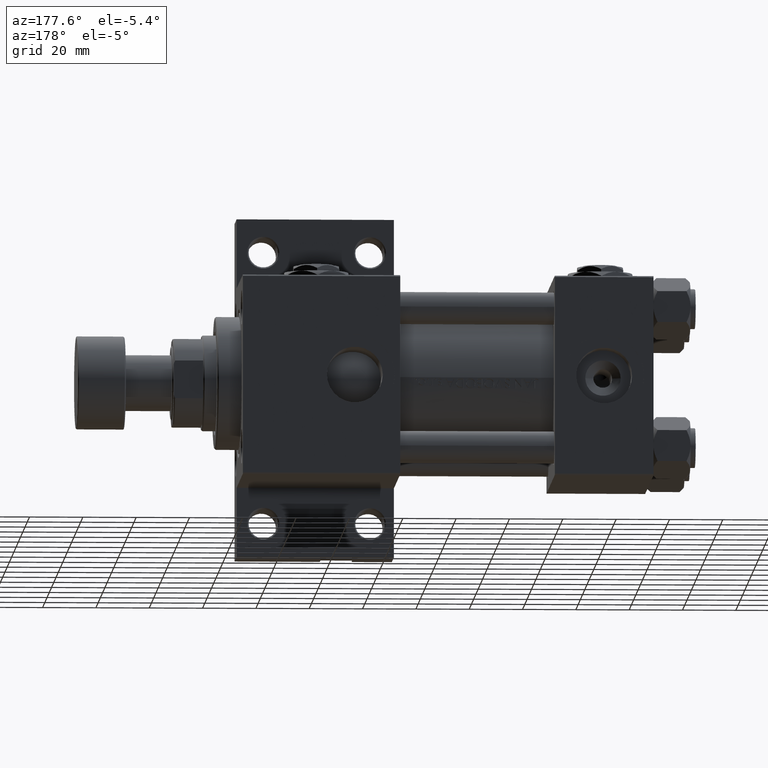
[diagram: clean part render]
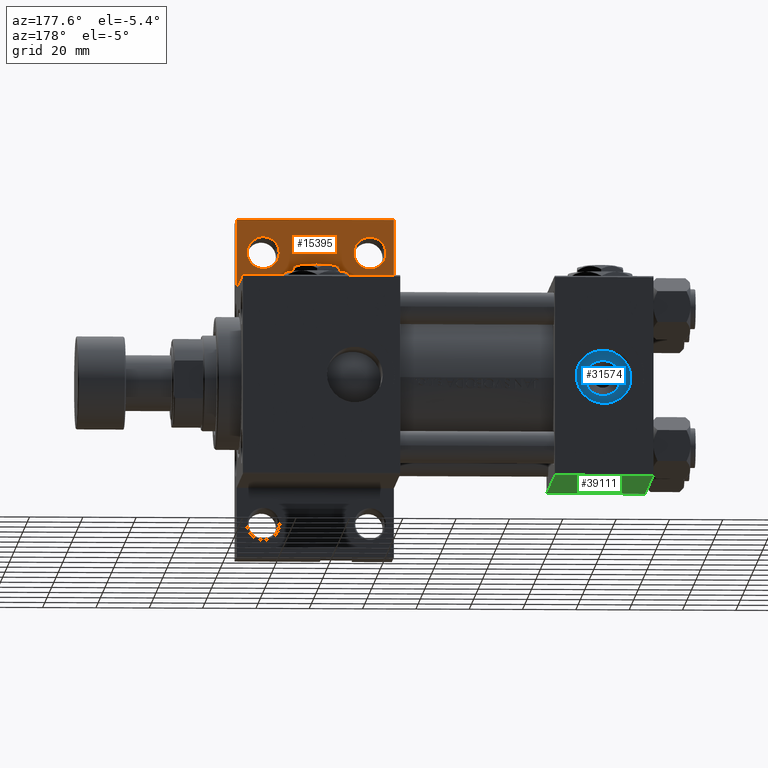
[diagram: same view with three faces highlighted in distinct colors, each labeled with its STEP entity id]
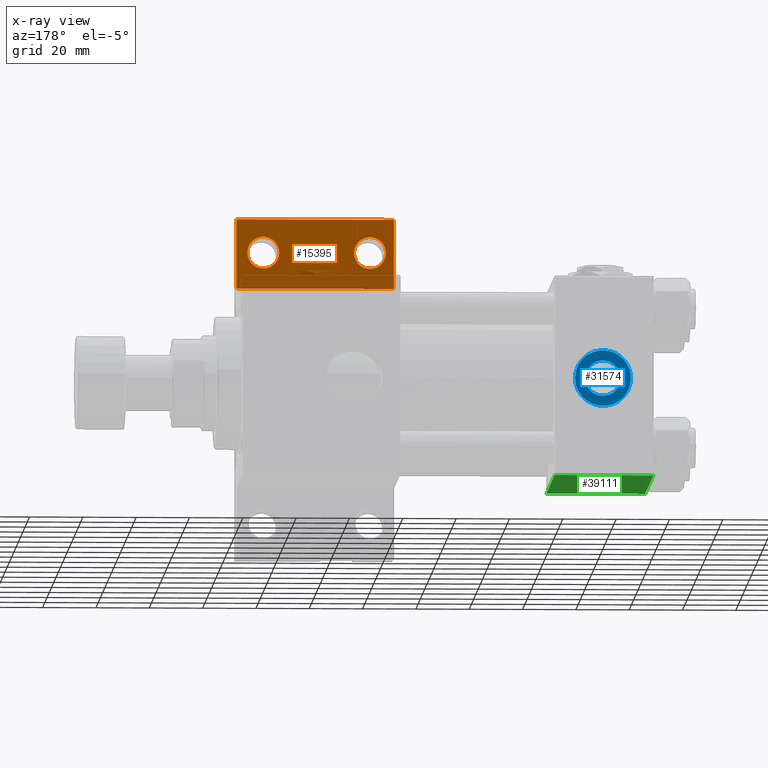
[diagram: x-ray of the same camera — body ghosted, the three highlighted faces saturated]
A machine part, auxiliary view with three faces highlighted in distinct colors.
The next image is the same camera in x-ray (body ghosted, the three faces saturated) — at least one of them is partly hidden behind the body in this view.
Their STEP definitions:

[orange] entity #15395 — the highlighted planar face has unit normal (0, -1, 0).
#679 = CARTESIAN_POINT ( 'NONE',  ( 149.9995000000000118, -51.00000000000000000, -18.50000000000000000 ) ) ;
#1261 = DIRECTION ( 'NONE',  ( 0.000000000000000000, 0.000000000000000000, -1.000000000000000000 ) ) ;
#1513 = FACE_BOUND ( 'NONE', #4546, .T. ) ;
#2384 = ORIENTED_EDGE ( 'NONE', *, *, #10330, .F. ) ;
#2415 = AXIS2_PLACEMENT_3D ( 'NONE', #22276, #49422, #37502 ) ;
#3821 = LINE ( 'NONE', #7634, #20458 ) ;
#4546 = EDGE_LOOP ( 'NONE', ( #36491, #10978 ) ) ;
#6577 = CARTESIAN_POINT ( 'NONE',  ( 143.9999999999999716, -51.00000000000000000, -18.50000000000000000 ) ) ;
#7163 = ORIENTED_EDGE ( 'NONE', *, *, #48563, .T. ) ;
#7634 = CARTESIAN_POINT ( 'NONE',  ( 94.99999999999998579, -63.50000000000000000, -18.50000000000000000 ) ) ;
#8508 = AXIS2_PLACEMENT_3D ( 'NONE', #45032, #14341, #42403 ) ;
#8994 = CARTESIAN_POINT ( 'NONE',  ( 98.00049999999988870, -50.99999999999999289, -18.50000000000000000 ) ) ;
#9212 = EDGE_LOOP ( 'NONE', ( #7163, #23660 ) ) ;
#9886 = DIRECTION ( 'NONE',  ( -1.000000000000000000, 0.000000000000000000, 0.000000000000000000 ) ) ;
#10330 = EDGE_CURVE ( 'NONE', #27964, #35702, #47221, .T. ) ;
#10713 = ORIENTED_EDGE ( 'NONE', *, *, #23074, .F. ) ;
#10835 = CARTESIAN_POINT ( 'NONE',  ( 154.0000000000000000, -37.50000000000000711, -18.50000000000000355 ) ) ;
#10978 = ORIENTED_EDGE ( 'NONE', *, *, #23013, .T. ) ;
#11975 = LINE ( 'NONE', #42912, #29031 ) ;
#12894 = EDGE_LOOP ( 'NONE', ( #18058, #2384, #13945, #10713 ) ) ;
#13945 = ORIENTED_EDGE ( 'NONE', *, *, #22118, .F. ) ;
#14341 = DIRECTION ( 'NONE',  ( 0.000000000000000000, 0.000000000000000000, -1.000000000000000000 ) ) ;
#14741 = VERTEX_POINT ( 'NONE', #39649 ) ;
#15395 = ADVANCED_FACE ( 'NONE', ( #16201, #1513, #24311 ), #36259, .F. ) ;
#16201 = FACE_BOUND ( 'NONE', #9212, .T. ) ;
#16591 = CIRCLE ( 'NONE', #8508, 5.999500000000046462 ) ;
#16665 = CARTESIAN_POINT ( 'NONE',  ( 95.00000000000000000, -37.50000000000000000, -18.50000000000000000 ) ) ;
#16707 = DIRECTION ( 'NONE',  ( -1.000000000000000000, 0.000000000000000000, -0.000000000000000000 ) ) ;
#18058 = ORIENTED_EDGE ( 'NONE', *, *, #39305, .F. ) ;
#18488 = VERTEX_POINT ( 'NONE', #48929 ) ;
#20458 = VECTOR ( 'NONE', #39038, 1000.000000000000000 ) ;
#22118 = EDGE_CURVE ( 'NONE', #14741, #27964, #3821, .T. ) ;
#22147 = DIRECTION ( 'NONE',  ( 0.000000000000000000, 0.000000000000000000, -1.000000000000000000 ) ) ;
#22276 = CARTESIAN_POINT ( 'NONE',  ( 103.9999999999999574, -50.99999999999999289, -18.50000000000000000 ) ) ;
#23013 = EDGE_CURVE ( 'NONE', #39057, #45873, #45598, .T. ) ;
#23074 = EDGE_CURVE ( 'NONE', #18488, #14741, #35819, .T. ) ;
#23660 = ORIENTED_EDGE ( 'NONE', *, *, #26839, .T. ) ;
#24311 = FACE_OUTER_BOUND ( 'NONE', #12894, .T. ) ;
#24869 = CARTESIAN_POINT ( 'NONE',  ( 109.9995000000000118, -50.99999999999999289, -18.50000000000000000 ) ) ;
#25514 = AXIS2_PLACEMENT_3D ( 'NONE', #6577, #32977, #9886 ) ;
#26108 = AXIS2_PLACEMENT_3D ( 'NONE', #40299, #1261, #16707 ) ;
#26839 = EDGE_CURVE ( 'NONE', #31161, #38603, #35215, .T. ) ;
#27026 = VECTOR ( 'NONE', #47474, 1000.000000000000000 ) ;
#27964 = VERTEX_POINT ( 'NONE', #16665 ) ;
#28201 = CARTESIAN_POINT ( 'NONE',  ( 95.00000000000000000, -37.50000000000000000, -18.50000000000000000 ) ) ;
#29031 = VECTOR ( 'NONE', #39605, 1000.000000000000000 ) ;
#30260 = VECTOR ( 'NONE', #46973, 1000.000000000000000 ) ;
#30754 = DIRECTION ( 'NONE',  ( -1.000000000000000000, 0.000000000000000000, 0.000000000000000000 ) ) ;
#31161 = VERTEX_POINT ( 'NONE', #37788 ) ;
#31510 = CARTESIAN_POINT ( 'NONE',  ( 94.99999999999998579, -63.50000000000000000, -18.50000000000000000 ) ) ;
#32977 = DIRECTION ( 'NONE',  ( 0.000000000000000000, 0.000000000000000000, -1.000000000000000000 ) ) ;
#33189 = CIRCLE ( 'NONE', #2415, 5.999500000000046462 ) ;
#34275 = AXIS2_PLACEMENT_3D ( 'NONE', #45971, #22147, #30754 ) ;
#35215 = CIRCLE ( 'NONE', #25514, 5.999500000000046462 ) ;
#35702 = VERTEX_POINT ( 'NONE', #10835 ) ;
#35819 = LINE ( 'NONE', #31510, #30260 ) ;
#36259 = PLANE ( 'NONE',  #26108 ) ;
#36491 = ORIENTED_EDGE ( 'NONE', *, *, #42391, .T. ) ;
#37502 = DIRECTION ( 'NONE',  ( -1.000000000000000000, 0.000000000000000000, 0.000000000000000000 ) ) ;
#37788 = CARTESIAN_POINT ( 'NONE',  ( 138.0004999999999029, -51.00000000000000000, -18.50000000000000000 ) ) ;
#38603 = VERTEX_POINT ( 'NONE', #679 ) ;
#39038 = DIRECTION ( 'NONE',  ( 5.337610695313252371E-16, 1.000000000000000000, 0.000000000000000000 ) ) ;
#39057 = VERTEX_POINT ( 'NONE', #8994 ) ;
#39305 = EDGE_CURVE ( 'NONE', #35702, #18488, #11975, .T. ) ;
#39605 = DIRECTION ( 'NONE',  ( -0.000000000000000000, -1.000000000000000000, -0.000000000000000000 ) ) ;
#39649 = CARTESIAN_POINT ( 'NONE',  ( 94.99999999999998579, -63.50000000000000000, -18.50000000000000000 ) ) ;
#40299 = CARTESIAN_POINT ( 'NONE',  ( 0.000000000000000000, 0.000000000000000000, -18.50000000000000000 ) ) ;
#42391 = EDGE_CURVE ( 'NONE', #45873, #39057, #33189, .T. ) ;
#42403 = DIRECTION ( 'NONE',  ( -1.000000000000000000, 0.000000000000000000, 0.000000000000000000 ) ) ;
#42912 = CARTESIAN_POINT ( 'NONE',  ( 153.9999999999999716, -63.50000000000002842, -18.50000000000000000 ) ) ;
#45032 = CARTESIAN_POINT ( 'NONE',  ( 143.9999999999999716, -51.00000000000000000, -18.50000000000000000 ) ) ;
#45598 = CIRCLE ( 'NONE', #34275, 5.999500000000046462 ) ;
#45873 = VERTEX_POINT ( 'NONE', #24869 ) ;
#45971 = CARTESIAN_POINT ( 'NONE',  ( 103.9999999999999574, -50.99999999999999289, -18.50000000000000000 ) ) ;
#46973 = DIRECTION ( 'NONE',  ( -1.000000000000000000, 4.704334850106596780E-16, -0.000000000000000000 ) ) ;
#47221 = LINE ( 'NONE', #28201, #27026 ) ;
#47474 = DIRECTION ( 'NONE',  ( 1.000000000000000000, -3.528251137579948571E-16, 0.000000000000000000 ) ) ;
#48563 = EDGE_CURVE ( 'NONE', #38603, #31161, #16591, .T. ) ;
#48929 = CARTESIAN_POINT ( 'NONE',  ( 153.9999999999999716, -63.50000000000002842, -18.50000000000000000 ) ) ;
#49422 = DIRECTION ( 'NONE',  ( 0.000000000000000000, 0.000000000000000000, -1.000000000000000000 ) ) ;

[blue] entity #31574 — the highlighted planar face has unit normal (0, 1, 0).
#2937 = EDGE_CURVE ( 'NONE', #14115, #22055, #23589, .T. ) ;
#3584 = CIRCLE ( 'NONE', #5169, 6.639999999999986358 ) ;
#5169 = AXIS2_PLACEMENT_3D ( 'NONE', #22729, #45814, #10830 ) ;
#5179 = CARTESIAN_POINT ( 'NONE',  ( 28.98000000000000043, -5.204170427930421283E-15, 26.69999999999999929 ) ) ;
#9604 = FACE_BOUND ( 'NONE', #49525, .T. ) ;
#10830 = DIRECTION ( 'NONE',  ( 1.000000000000000000, 0.000000000000000000, 0.000000000000000000 ) ) ;
#11670 = CARTESIAN_POINT ( 'NONE',  ( 8.019999999999999574, -3.920740582423995006E-15, 26.69999999999999929 ) ) ;
#11701 = ORIENTED_EDGE ( 'NONE', *, *, #45988, .T. ) ;
#12374 = FACE_OUTER_BOUND ( 'NONE', #32306, .T. ) ;
#12879 = DIRECTION ( 'NONE',  ( 1.000000000000000000, 0.000000000000000000, -0.000000000000000000 ) ) ;
#13404 = CARTESIAN_POINT ( 'NONE',  ( 18.50000000000000000, -5.204170427930421283E-15, 26.69999999999999929 ) ) ;
#14115 = VERTEX_POINT ( 'NONE', #5179 ) ;
#16947 = DIRECTION ( 'NONE',  ( 0.000000000000000000, 0.000000000000000000, 1.000000000000000000 ) ) ;
#16996 = VERTEX_POINT ( 'NONE', #34332 ) ;
#18502 = CARTESIAN_POINT ( 'NONE',  ( 18.50000000000000000, -5.204170427930421283E-15, 26.69999999999999929 ) ) ;
#19768 = CARTESIAN_POINT ( 'NONE',  ( 25.13999999999998636, -5.204170427930421283E-15, 26.69999999999999929 ) ) ;
#21237 = CARTESIAN_POINT ( 'NONE',  ( 18.50000000000000000, -5.204170427930421283E-15, 26.69999999999999929 ) ) ;
#21384 = AXIS2_PLACEMENT_3D ( 'NONE', #48656, #44095, #28377 ) ;
#22055 = VERTEX_POINT ( 'NONE', #11670 ) ;
#22556 = DIRECTION ( 'NONE',  ( -0.000000000000000000, -0.000000000000000000, -1.000000000000000000 ) ) ;
#22729 = CARTESIAN_POINT ( 'NONE',  ( 18.50000000000000000, -5.204170427930421283E-15, 26.69999999999999929 ) ) ;
#23589 = CIRCLE ( 'NONE', #48740, 10.48000000000000043 ) ;
#24237 = EDGE_CURVE ( 'NONE', #16996, #43947, #3584, .T. ) ;
#24278 = PLANE ( 'NONE',  #28896 ) ;
#26192 = AXIS2_PLACEMENT_3D ( 'NONE', #18502, #22556, #37294 ) ;
#28377 = DIRECTION ( 'NONE',  ( 1.000000000000000000, 0.000000000000000000, 0.000000000000000000 ) ) ;
#28896 = AXIS2_PLACEMENT_3D ( 'NONE', #21237, #31654, #12879 ) ;
#31574 = ADVANCED_FACE ( 'NONE', ( #9604, #12374 ), #24278, .T. ) ;
#31654 = DIRECTION ( 'NONE',  ( 0.000000000000000000, 0.000000000000000000, 1.000000000000000000 ) ) ;
#31720 = ORIENTED_EDGE ( 'NONE', *, *, #47198, .T. ) ;
#32306 = EDGE_LOOP ( 'NONE', ( #47905, #31720 ) ) ;
#32701 = DIRECTION ( 'NONE',  ( 1.000000000000000000, 0.000000000000000000, 0.000000000000000000 ) ) ;
#34332 = CARTESIAN_POINT ( 'NONE',  ( 11.86000000000001364, -4.391004953296580751E-15, 26.69999999999999929 ) ) ;
#37294 = DIRECTION ( 'NONE',  ( 1.000000000000000000, 0.000000000000000000, 0.000000000000000000 ) ) ;
#39983 = CIRCLE ( 'NONE', #26192, 6.639999999999986358 ) ;
#43238 = CIRCLE ( 'NONE', #21384, 10.48000000000000043 ) ;
#43947 = VERTEX_POINT ( 'NONE', #19768 ) ;
#44095 = DIRECTION ( 'NONE',  ( 0.000000000000000000, 0.000000000000000000, 1.000000000000000000 ) ) ;
#45814 = DIRECTION ( 'NONE',  ( -0.000000000000000000, -0.000000000000000000, -1.000000000000000000 ) ) ;
#45988 = EDGE_CURVE ( 'NONE', #43947, #16996, #39983, .T. ) ;
#46930 = ORIENTED_EDGE ( 'NONE', *, *, #24237, .T. ) ;
#47198 = EDGE_CURVE ( 'NONE', #22055, #14115, #43238, .T. ) ;
#47905 = ORIENTED_EDGE ( 'NONE', *, *, #2937, .T. ) ;
#48656 = CARTESIAN_POINT ( 'NONE',  ( 18.50000000000000000, -5.204170427930421283E-15, 26.69999999999999929 ) ) ;
#48740 = AXIS2_PLACEMENT_3D ( 'NONE', #13404, #16947, #32701 ) ;
#49525 = EDGE_LOOP ( 'NONE', ( #11701, #46930 ) ) ;

[green] entity #39111 — the highlighted planar face has unit normal (0, 0, -1).
#1986 = ORIENTED_EDGE ( 'NONE', *, *, #34565, .T. ) ;
#2071 = ORIENTED_EDGE ( 'NONE', *, *, #31732, .T. ) ;
#2120 = VERTEX_POINT ( 'NONE', #27053 ) ;
#3224 = CARTESIAN_POINT ( 'NONE',  ( 37.00000000000000000, 37.49999999999999289, 37.00000000000000000 ) ) ;
#3551 = LINE ( 'NONE', #26366, #24080 ) ;
#3646 = EDGE_CURVE ( 'NONE', #2120, #48343, #3551, .T. ) ;
#5278 = EDGE_CURVE ( 'NONE', #13278, #8660, #39660, .T. ) ;
#6193 = PLANE ( 'NONE',  #10419 ) ;
#8660 = VERTEX_POINT ( 'NONE', #10935 ) ;
#10419 = AXIS2_PLACEMENT_3D ( 'NONE', #32579, #17329, #36383 ) ;
#10935 = CARTESIAN_POINT ( 'NONE',  ( 0.000000000000000000, 37.49999999999999289, -36.99999999999998579 ) ) ;
#11822 = LINE ( 'NONE', #3224, #15932 ) ;
#13278 = VERTEX_POINT ( 'NONE', #32198 ) ;
#14697 = DIRECTION ( 'NONE',  ( 0.000000000000000000, 0.000000000000000000, -1.000000000000000000 ) ) ;
#14781 = VECTOR ( 'NONE', #21136, 1000.000000000000000 ) ;
#15932 = VECTOR ( 'NONE', #46557, 1000.000000000000000 ) ;
#16699 = VECTOR ( 'NONE', #30407, 1000.000000000000000 ) ;
#16938 = ORIENTED_EDGE ( 'NONE', *, *, #3646, .T. ) ;
#17329 = DIRECTION ( 'NONE',  ( -0.000000000000000000, 1.000000000000000000, 0.000000000000000000 ) ) ;
#19684 = CARTESIAN_POINT ( 'NONE',  ( 37.00000000000000000, 37.49999999999999289, -36.99999999999998579 ) ) ;
#21136 = DIRECTION ( 'NONE',  ( 0.000000000000000000, 0.000000000000000000, -1.000000000000000000 ) ) ;
#24080 = VECTOR ( 'NONE', #14697, 1000.000000000000000 ) ;
#26366 = CARTESIAN_POINT ( 'NONE',  ( 37.00000000000000000, 37.49999999999999289, 37.50000000000000000 ) ) ;
#27053 = CARTESIAN_POINT ( 'NONE',  ( 37.00000000000000000, 37.49999999999999289, 37.00000000000000000 ) ) ;
#30407 = DIRECTION ( 'NONE',  ( -1.000000000000000000, 0.000000000000000000, 0.000000000000000000 ) ) ;
#31732 = EDGE_CURVE ( 'NONE', #13278, #2120, #11822, .T. ) ;
#32198 = CARTESIAN_POINT ( 'NONE',  ( 0.000000000000000000, 37.49999999999999289, 37.00000000000000000 ) ) ;
#32579 = CARTESIAN_POINT ( 'NONE',  ( 37.00000000000000000, 37.49999999999999289, 37.50000000000000000 ) ) ;
#34219 = LINE ( 'NONE', #42569, #16699 ) ;
#34565 = EDGE_CURVE ( 'NONE', #48343, #8660, #34219, .T. ) ;
#35625 = CARTESIAN_POINT ( 'NONE',  ( 0.000000000000000000, 37.49999999999999289, 37.50000000000000000 ) ) ;
#36383 = DIRECTION ( 'NONE',  ( 0.000000000000000000, -0.000000000000000000, 1.000000000000000000 ) ) ;
#39111 = ADVANCED_FACE ( 'NONE', ( #40922 ), #6193, .T. ) ;
#39463 = ORIENTED_EDGE ( 'NONE', *, *, #5278, .F. ) ;
#39660 = LINE ( 'NONE', #35625, #14781 ) ;
#40922 = FACE_OUTER_BOUND ( 'NONE', #45269, .T. ) ;
#42569 = CARTESIAN_POINT ( 'NONE',  ( 37.00000000000000000, 37.49999999999999289, -36.99999999999998579 ) ) ;
#45269 = EDGE_LOOP ( 'NONE', ( #16938, #1986, #39463, #2071 ) ) ;
#46557 = DIRECTION ( 'NONE',  ( 1.000000000000000000, 0.000000000000000000, 0.000000000000000000 ) ) ;
#48343 = VERTEX_POINT ( 'NONE', #19684 ) ;